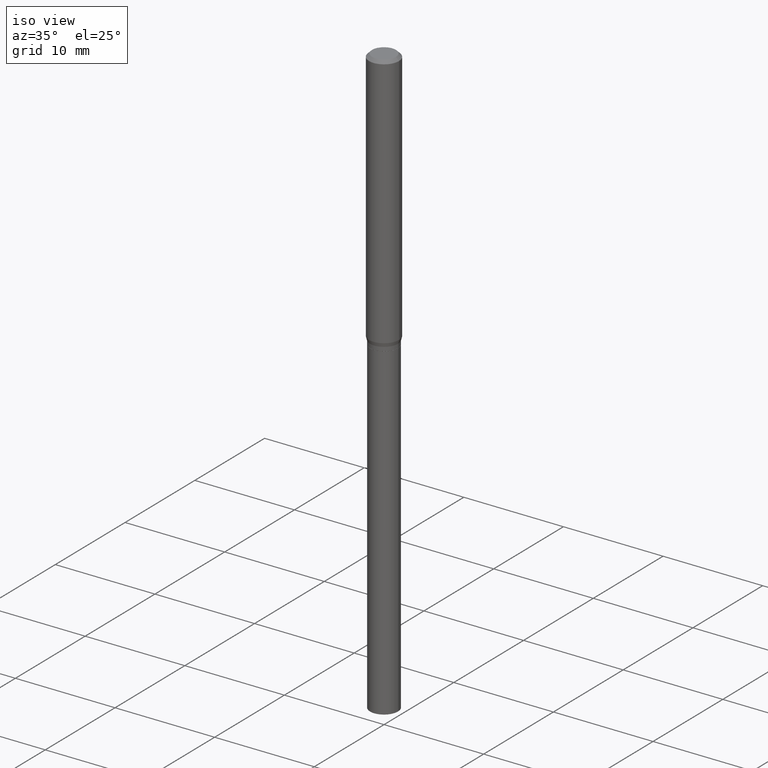
[diagram: clean part render]
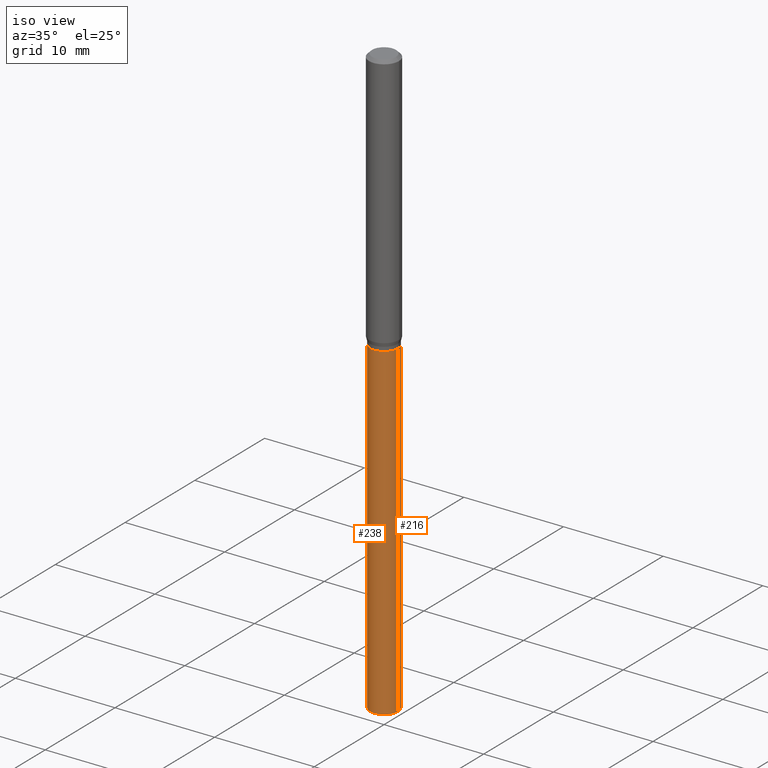
[diagram: same view with one multi-face feature highlighted, each face labeled with its STEP entity id]
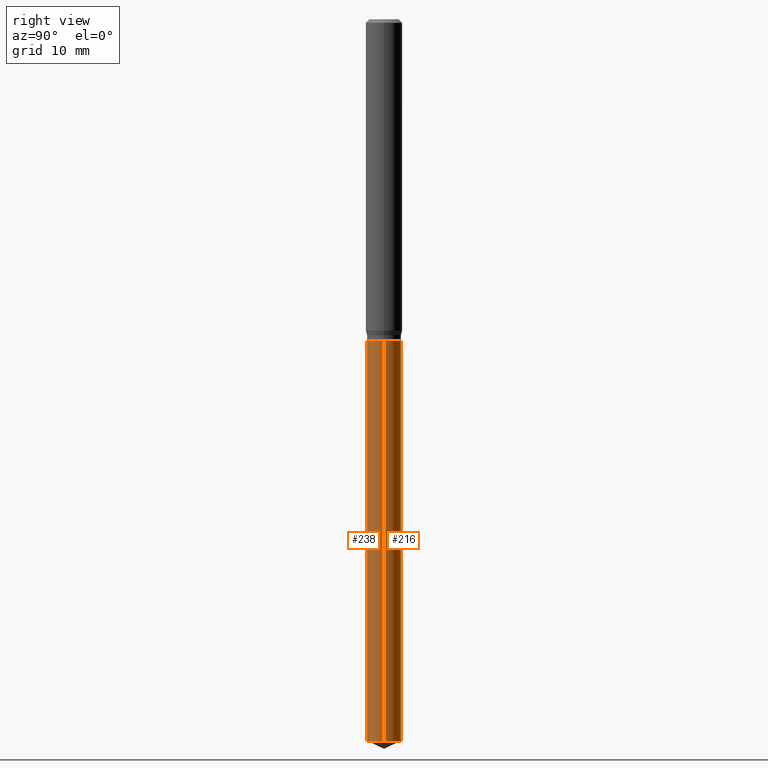
[diagram: same view with one multi-face feature highlighted, each face labeled with its STEP entity id]
A machine part, iso view. The highlighted faces form ONE feature: a constant-radius fillet chain: 2 tangent blend faces with common blend radius 1.3995 mm. The faces share edges in the B-rep.
A second angle (right view) of the same feature is appended — it is thin or edge-on in the first view.
Their STEP definitions:
[1] entity #238 (Cylinder):
#34 = CIRCLE ( 'NONE', #70, 0.05510000000000000314 ) ;
#43 = CIRCLE ( 'NONE', #266, 0.05510000000000000314 ) ;
#62 = VERTEX_POINT ( 'NONE', #464 ) ;
#70 = AXIS2_PLACEMENT_3D ( 'NONE', #153, #168, #87 ) ;
#87 = DIRECTION ( 'NONE',  ( 1.000000000000000000, -6.982962677686265133E-15, 0.000000000000000000 ) ) ;
#103 = CARTESIAN_POINT ( 'NONE',  ( 2.541331183387594184E-29, -3.628347407325797379E-15, -1.039200000000000124 ) ) ;
#114 = VECTOR ( 'NONE', #241, 39.37007874015748143 ) ;
#130 = CARTESIAN_POINT ( 'NONE',  ( 0.05510000000000000314, -4.013108650866310965E-15, -1.039200000000000124 ) ) ;
#139 = ORIENTED_EDGE ( 'NONE', *, *, #149, .T. ) ;
#149 = EDGE_CURVE ( 'NONE', #393, #62, #469, .T. ) ;
#153 = CARTESIAN_POINT ( 'NONE',  ( 2.541331183387593623E-29, -3.628347407325796590E-15, -1.039199999999999902 ) ) ;
#159 = AXIS2_PLACEMENT_3D ( 'NONE', #103, #298, #255 ) ;
#168 = DIRECTION ( 'NONE',  ( -2.445468806185136597E-29, 3.491481338843145583E-15, 1.000000000000000000 ) ) ;
#176 = ORIENTED_EDGE ( 'NONE', *, *, #448, .F. ) ;
#179 = DIRECTION ( 'NONE',  ( 1.000000000000000000, -6.982962677686274599E-15, 0.000000000000000000 ) ) ;
#183 = DIRECTION ( 'NONE',  ( -2.445468806185136877E-29, 3.491481338843145188E-15, 1.000000000000000000 ) ) ;
#190 = FACE_OUTER_BOUND ( 'NONE', #407, .T. ) ;
#201 = ORIENTED_EDGE ( 'NONE', *, *, #284, .T. ) ;
#213 = CARTESIAN_POINT ( 'NONE',  ( -0.05510000000000000314, -3.236838359921982302E-15, -1.039200000000000124 ) ) ;
#214 = DIRECTION ( 'NONE',  ( -2.445468806185136597E-29, 3.491481338843145583E-15, 1.000000000000000000 ) ) ;
#219 = CARTESIAN_POINT ( 'NONE',  ( -0.05510000000000000314, -5.501249838826793473E-15, -1.039199999999999902 ) ) ;
#220 = VERTEX_POINT ( 'NONE', #219 ) ;
#238 = ADVANCED_FACE ( 'NONE', ( #190 ), #369, .T. ) ;
#241 = DIRECTION ( 'NONE',  ( -2.445468806185136877E-29, 3.491481338843145188E-15, 1.000000000000000000 ) ) ;
#255 = DIRECTION ( 'NONE',  ( 1.000000000000000000, -6.982962677686265133E-15, 0.000000000000000000 ) ) ;
#266 = AXIS2_PLACEMENT_3D ( 'NONE', #388, #214, #179 ) ;
#284 = EDGE_CURVE ( 'NONE', #295, #393, #43, .T. ) ;
#289 = VECTOR ( 'NONE', #183, 39.37007874015748143 ) ;
#295 = VERTEX_POINT ( 'NONE', #321 ) ;
#298 = DIRECTION ( 'NONE',  ( -2.445468806185136597E-29, 3.491481338843145583E-15, 1.000000000000000000 ) ) ;
#321 = CARTESIAN_POINT ( 'NONE',  ( -0.05509999999999999620, -7.765661317731605038E-15, -2.336306448035660122 ) ) ;
#369 = CYLINDRICAL_SURFACE ( 'NONE', #159, 0.05510000000000000314 ) ;
#388 = CARTESIAN_POINT ( 'NONE',  ( 5.713364540360402873E-29, -8.157170365135421298E-15, -2.336306448035660122 ) ) ;
#393 = VERTEX_POINT ( 'NONE', #460 ) ;
#402 = LINE ( 'NONE', #213, #114 ) ;
#405 = EDGE_CURVE ( 'NONE', #295, #220, #402, .T. ) ;
#407 = EDGE_LOOP ( 'NONE', ( #451, #201, #139, #176 ) ) ;
#448 = EDGE_CURVE ( 'NONE', #220, #62, #34, .T. ) ;
#451 = ORIENTED_EDGE ( 'NONE', *, *, #405, .F. ) ;
#460 = CARTESIAN_POINT ( 'NONE',  ( 0.05509999999999999620, -8.541931608675934884E-15, -2.336306448035660122 ) ) ;
#464 = CARTESIAN_POINT ( 'NONE',  ( 0.05510000000000000314, -4.013108650866310176E-15, -1.039199999999999902 ) ) ;
#469 = LINE ( 'NONE', #130, #289 ) ;
[2] entity #216 (Cylinder):
#11 = EDGE_CURVE ( 'NONE', #62, #220, #208, .T. ) ;
#22 = DIRECTION ( 'NONE',  ( 1.000000000000000000, -6.982962677686265133E-15, 0.000000000000000000 ) ) ;
#24 = CYLINDRICAL_SURFACE ( 'NONE', #374, 0.05510000000000000314 ) ;
#54 = AXIS2_PLACEMENT_3D ( 'NONE', #98, #173, #325 ) ;
#62 = VERTEX_POINT ( 'NONE', #464 ) ;
#98 = CARTESIAN_POINT ( 'NONE',  ( 2.541331183387593623E-29, -3.628347407325796590E-15, -1.039199999999999902 ) ) ;
#104 = ORIENTED_EDGE ( 'NONE', *, *, #11, .F. ) ;
#114 = VECTOR ( 'NONE', #241, 39.37007874015748143 ) ;
#124 = ORIENTED_EDGE ( 'NONE', *, *, #149, .F. ) ;
#130 = CARTESIAN_POINT ( 'NONE',  ( 0.05510000000000000314, -4.013108650866310965E-15, -1.039200000000000124 ) ) ;
#149 = EDGE_CURVE ( 'NONE', #393, #62, #469, .T. ) ;
#173 = DIRECTION ( 'NONE',  ( -2.445468806185136597E-29, 3.491481338843145583E-15, 1.000000000000000000 ) ) ;
#183 = DIRECTION ( 'NONE',  ( -2.445468806185136877E-29, 3.491481338843145188E-15, 1.000000000000000000 ) ) ;
#208 = CIRCLE ( 'NONE', #54, 0.05510000000000000314 ) ;
#213 = CARTESIAN_POINT ( 'NONE',  ( -0.05510000000000000314, -3.236838359921982302E-15, -1.039200000000000124 ) ) ;
#216 = ADVANCED_FACE ( 'NONE', ( #372 ), #24, .T. ) ;
#219 = CARTESIAN_POINT ( 'NONE',  ( -0.05510000000000000314, -5.501249838826793473E-15, -1.039199999999999902 ) ) ;
#220 = VERTEX_POINT ( 'NONE', #219 ) ;
#241 = DIRECTION ( 'NONE',  ( -2.445468806185136877E-29, 3.491481338843145188E-15, 1.000000000000000000 ) ) ;
#263 = DIRECTION ( 'NONE',  ( 1.000000000000000000, -6.982962677686274599E-15, 0.000000000000000000 ) ) ;
#279 = ORIENTED_EDGE ( 'NONE', *, *, #405, .T. ) ;
#288 = DIRECTION ( 'NONE',  ( -2.445468806185136597E-29, 3.491481338843145583E-15, 1.000000000000000000 ) ) ;
#289 = VECTOR ( 'NONE', #183, 39.37007874015748143 ) ;
#293 = CIRCLE ( 'NONE', #382, 0.05510000000000000314 ) ;
#295 = VERTEX_POINT ( 'NONE', #321 ) ;
#297 = CARTESIAN_POINT ( 'NONE',  ( 5.713364540360402873E-29, -8.157170365135421298E-15, -2.336306448035660122 ) ) ;
#321 = CARTESIAN_POINT ( 'NONE',  ( -0.05509999999999999620, -7.765661317731605038E-15, -2.336306448035660122 ) ) ;
#325 = DIRECTION ( 'NONE',  ( 1.000000000000000000, -6.982962677686265133E-15, 0.000000000000000000 ) ) ;
#330 = EDGE_CURVE ( 'NONE', #393, #295, #293, .T. ) ;
#352 = ORIENTED_EDGE ( 'NONE', *, *, #330, .T. ) ;
#372 = FACE_OUTER_BOUND ( 'NONE', #470, .T. ) ;
#374 = AXIS2_PLACEMENT_3D ( 'NONE', #378, #288, #22 ) ;
#378 = CARTESIAN_POINT ( 'NONE',  ( 2.541331183387594184E-29, -3.628347407325797379E-15, -1.039200000000000124 ) ) ;
#382 = AXIS2_PLACEMENT_3D ( 'NONE', #297, #442, #263 ) ;
#393 = VERTEX_POINT ( 'NONE', #460 ) ;
#402 = LINE ( 'NONE', #213, #114 ) ;
#405 = EDGE_CURVE ( 'NONE', #295, #220, #402, .T. ) ;
#442 = DIRECTION ( 'NONE',  ( -2.445468806185136597E-29, 3.491481338843145583E-15, 1.000000000000000000 ) ) ;
#460 = CARTESIAN_POINT ( 'NONE',  ( 0.05509999999999999620, -8.541931608675934884E-15, -2.336306448035660122 ) ) ;
#464 = CARTESIAN_POINT ( 'NONE',  ( 0.05510000000000000314, -4.013108650866310176E-15, -1.039199999999999902 ) ) ;
#469 = LINE ( 'NONE', #130, #289 ) ;
#470 = EDGE_LOOP ( 'NONE', ( #352, #279, #104, #124 ) ) ;